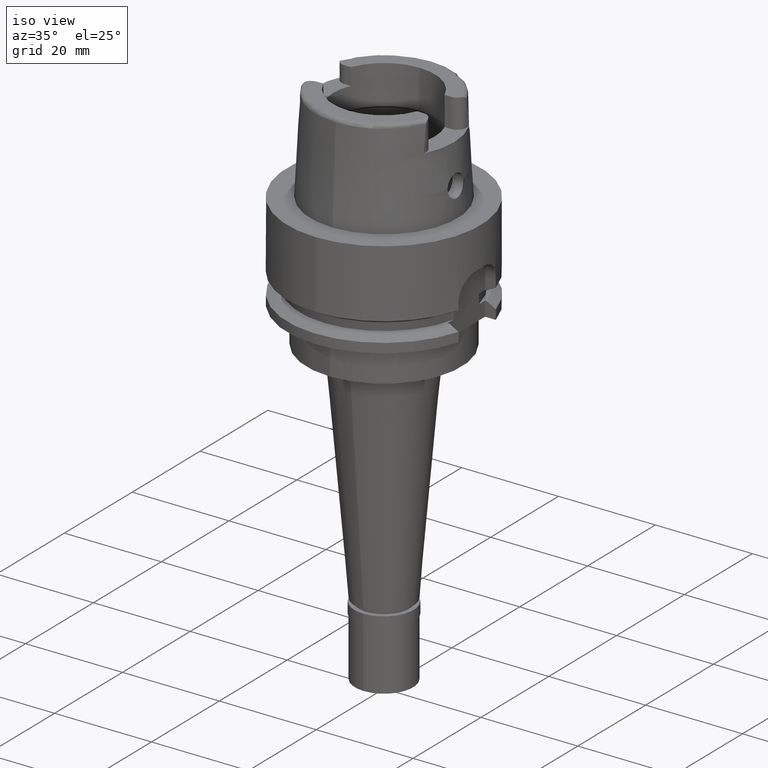
[diagram: clean part render]
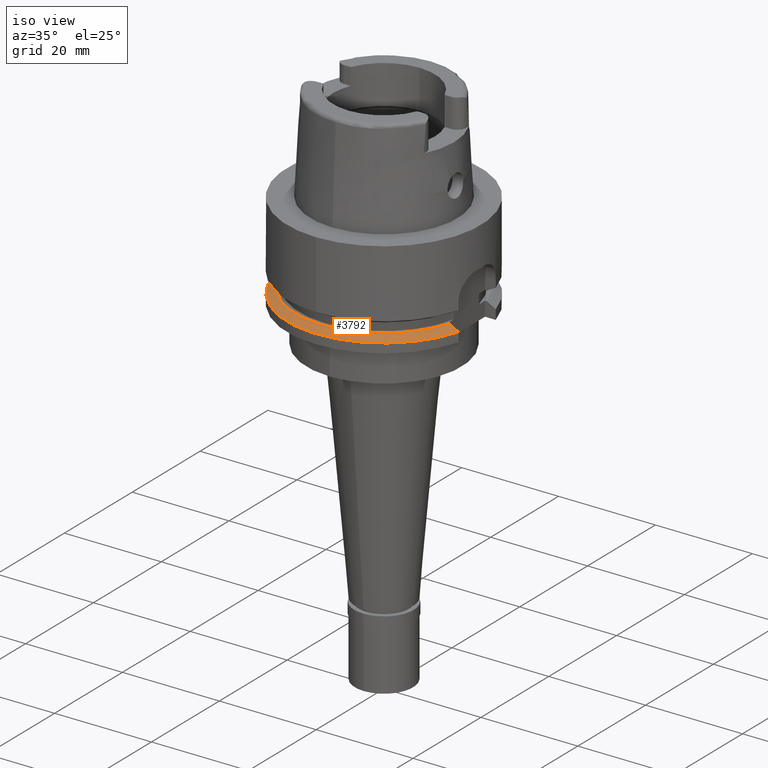
[diagram: same view with one face highlighted and labeled with its STEP entity id]
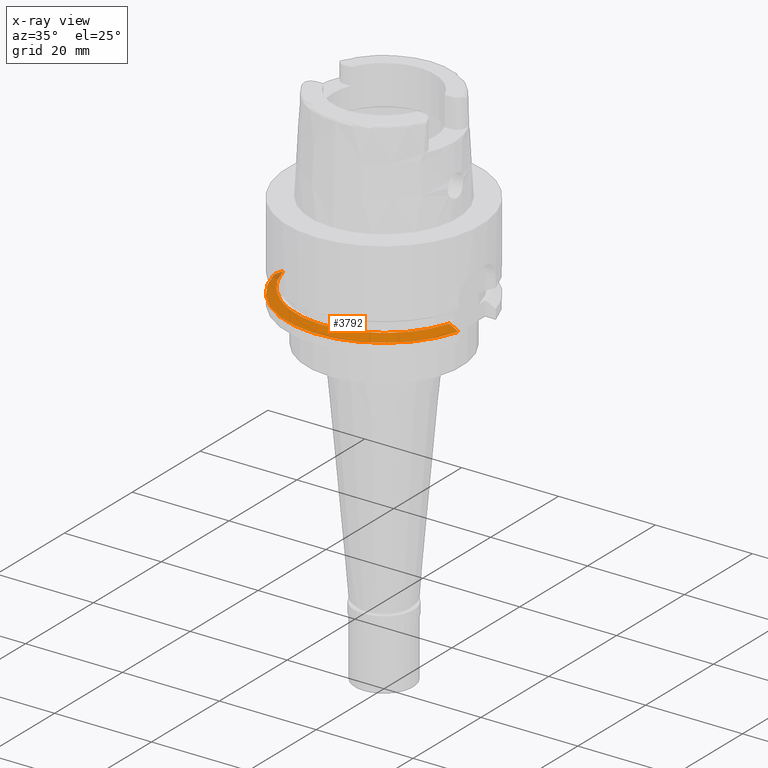
[diagram: x-ray of the same camera — body ghosted, the highlighted face saturated]
A machine part, iso view. The second image highlights one B-rep face of the part: STEP entity #3792.
The next image is the same camera in x-ray: the body ghosted, the highlighted face saturated — about 2% of this face is hidden behind the body in this view.
In plain terms, the highlighted conical surface has half-angle 60 deg.
Its self-contained STEP definition (entity closure, byte-faithful):
#272 = CIRCLE ( 'NONE', #3255, 18.23205080757000118 ) ;
#352 = CARTESIAN_POINT ( 'NONE',  ( 17.38268324078999783, -5.500000000000000000, -17.00000000000000000 ) ) ;
#450 = ORIENTED_EDGE ( 'NONE', *, *, #626, .F. ) ;
#510 = VERTEX_POINT ( 'NONE', #2345 ) ;
#626 = EDGE_CURVE ( 'NONE', #2993, #1760, #3137, .T. ) ;
#705 = EDGE_CURVE ( 'NONE', #1760, #510, #4502, .T. ) ;
#785 = CARTESIAN_POINT ( 'NONE',  ( -18.88138594756999922, -4.500000000000000000, -17.68013035677000033 ) ) ;
#870 = AXIS2_PLACEMENT_3D ( 'NONE', #4736, #2772, #2675 ) ;
#1178 = CARTESIAN_POINT ( 'NONE',  ( 18.60163189416000051, -5.499999794676999620, -17.67283122902000159 ) ) ;
#1407 = CARTESIAN_POINT ( 'NONE',  ( 0.0000000000000000000, 1.010206699502999904E-14, -17.00000000000000000 ) ) ;
#1579 = CARTESIAN_POINT ( 'NONE',  ( 17.98623793624999934, -5.499999994548999460, -17.33257474358000039 ) ) ;
#1610 = CARTESIAN_POINT ( 'NONE',  ( -17.66798451012000370, -4.500000000000000000, -17.00000000000000000 ) ) ;
#1760 = VERTEX_POINT ( 'NONE', #2831 ) ;
#1782 = ORIENTED_EDGE ( 'NONE', *, *, #4225, .T. ) ;
#1799 = DIRECTION ( 'NONE',  ( 0.0000000000000000000, 0.0000000000000000000, -1.000000000000000000 ) ) ;
#2006 = CARTESIAN_POINT ( 'NONE',  ( -19.48717526991000071, -4.499999999998999911, -18.02072594216000212 ) ) ;
#2022 = ORIENTED_EDGE ( 'NONE', *, *, #4419, .F. ) ;
#2345 = CARTESIAN_POINT ( 'NONE',  ( -19.48717526991000071, -4.499999999998999911, -18.02072594216000212 ) ) ;
#2405 = CARTESIAN_POINT ( 'NONE',  ( -18.27500004444999959, -4.500000000000000000, -17.33986716593999944 ) ) ;
#2615 = AXIS2_PLACEMENT_3D ( 'NONE', #2851, #2876, #3741 ) ;
#2640 = ORIENTED_EDGE ( 'NONE', *, *, #705, .F. ) ;
#2675 = DIRECTION ( 'NONE',  ( 0.0000000000000000000, -1.000000000000000000, 0.0000000000000000000 ) ) ;
#2772 = DIRECTION ( 'NONE',  ( 0.0000000000000000000, 0.0000000000000000000, -1.000000000000000000 ) ) ;
#2792 = CARTESIAN_POINT ( 'NONE',  ( 19.01866578717999801, -5.500000482721000061, -17.90403973094000278 ) ) ;
#2831 = CARTESIAN_POINT ( 'NONE',  ( 19.22888452303000051, -5.499999999998999911, -18.02072594216000212 ) ) ;
#2851 = CARTESIAN_POINT ( 'NONE',  ( 0.0000000000000000000, 1.010206699502999904E-14, -18.02072594216000212 ) ) ;
#2855 = VERTEX_POINT ( 'NONE', #3169 ) ;
#2876 = DIRECTION ( 'NONE',  ( 0.0000000000000000000, 0.0000000000000000000, -1.000000000000000000 ) ) ;
#2993 = VERTEX_POINT ( 'NONE', #4200 ) ;
#3137 = B_SPLINE_CURVE_WITH_KNOTS ( 'NONE', 3,
 ( #352, #5256, #1579, #1178, #2792, #4440 ),
 .UNSPECIFIED., .F., .F.,
 ( 4, 1, 1, 4 ),
 ( 0.0000000000000000000, 0.3333333333333000081, 0.6666666666667000474, 1.000000000000000000 ),
 .UNSPECIFIED. ) ;
#3151 = EDGE_LOOP ( 'NONE', ( #2022, #2640, #450, #1782 ) ) ;
#3169 = CARTESIAN_POINT ( 'NONE',  ( -17.66798451012000370, -4.500000000000000000, -17.00000000000000000 ) ) ;
#3244 = CONICAL_SURFACE ( 'NONE', #870, 19.11602540378000015, 1.047197551196400456 ) ;
#3255 = AXIS2_PLACEMENT_3D ( 'NONE', #1407, #1799, #3455 ) ;
#3264 = CARTESIAN_POINT ( 'NONE',  ( -17.87038807252000083, -4.500000000000000000, -17.11324238619999960 ) ) ;
#3455 = DIRECTION ( 'NONE',  ( 0.0000000000000000000, -1.000000000000000000, 0.0000000000000000000 ) ) ;
#3467 = B_SPLINE_CURVE_WITH_KNOTS ( 'NONE', 3,
 ( #2006, #4444, #785, #2405, #3264, #1610 ),
 .UNSPECIFIED., .F., .F.,
 ( 4, 1, 1, 4 ),
 ( 0.0000000000000000000, 0.3333333333333000081, 0.6666666666667000474, 1.000000000000000000 ),
 .UNSPECIFIED. ) ;
#3741 = DIRECTION ( 'NONE',  ( 0.9614442261514726251, -0.2749999999999924727, 0.0000000000000000000 ) ) ;
#3792 = ADVANCED_FACE ( 'NONE', ( #4830 ), #3244, .T. ) ;
#4200 = CARTESIAN_POINT ( 'NONE',  ( 17.38268324078999783, -5.500000000000000000, -17.00000000000000000 ) ) ;
#4225 = EDGE_CURVE ( 'NONE', #2993, #2855, #272, .T. ) ;
#4419 = EDGE_CURVE ( 'NONE', #510, #2855, #3467, .T. ) ;
#4440 = CARTESIAN_POINT ( 'NONE',  ( 19.22888452303000051, -5.499999999998999911, -18.02072594216000212 ) ) ;
#4444 = CARTESIAN_POINT ( 'NONE',  ( -19.28530198036999721, -4.499999999998999911, -17.90716287119999706 ) ) ;
#4502 = CIRCLE ( 'NONE', #2615, 20.00000000000000355 ) ;
#4736 = CARTESIAN_POINT ( 'NONE',  ( 0.0000000000000000000, 1.010206699502999904E-14, -17.51036297107999928 ) ) ;
#4830 = FACE_OUTER_BOUND ( 'NONE', #3151, .T. ) ;
#5256 = CARTESIAN_POINT ( 'NONE',  ( 17.58274302707999937, -5.500000149599999943, -17.11012478856999763 ) ) ;